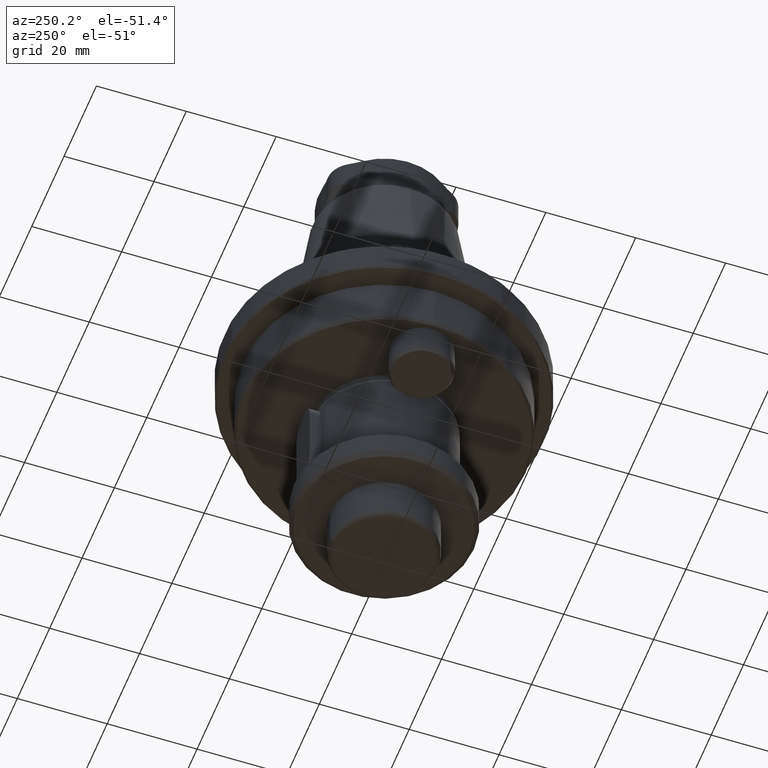
[diagram: clean part render]
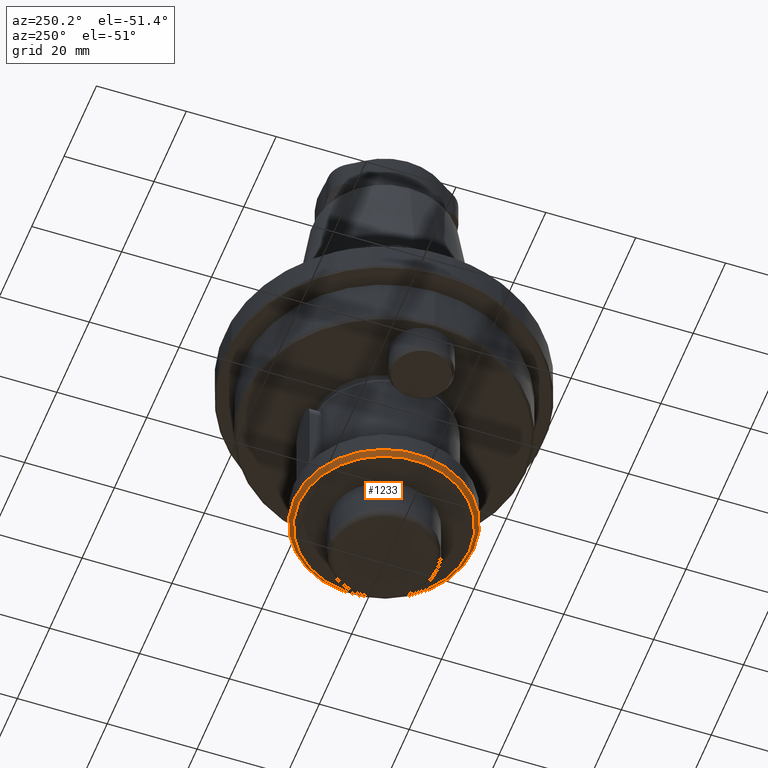
[diagram: same view with one face highlighted and labeled with its STEP entity id]
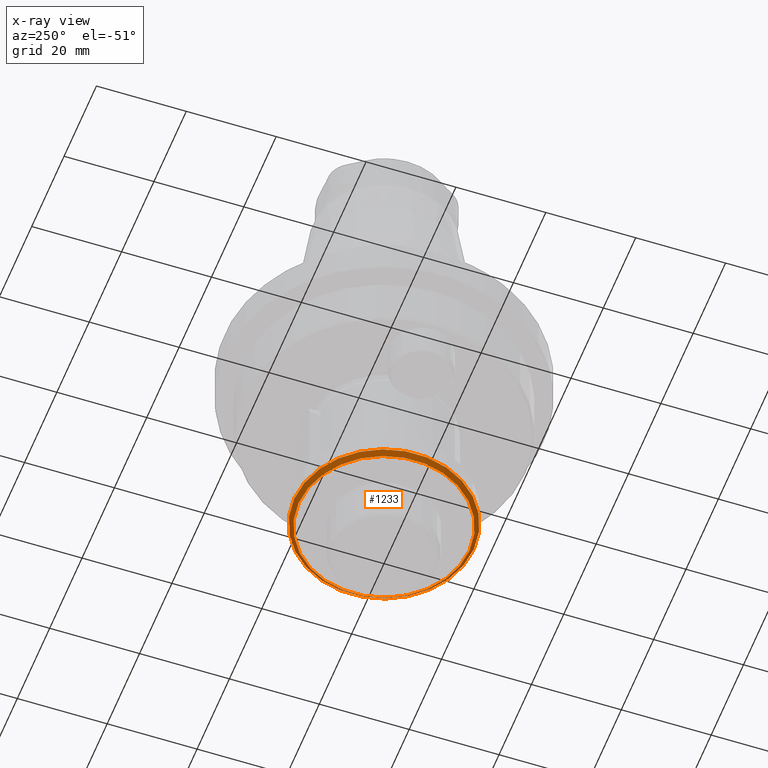
[diagram: x-ray of the same camera — body ghosted, the highlighted face saturated]
A machine part, auxiliary view. The second image highlights one B-rep face of the part: STEP entity #1233.
The next image is the same camera in x-ray: the body ghosted, the highlighted face saturated — about 0% of this face is hidden behind the body in this view.
In plain terms, the highlighted conical surface has half-angle 45 deg.
Its self-contained STEP definition (entity closure, byte-faithful):
#180=CONICAL_SURFACE('',#1364,20.,0.785398163397448);
#252=ORIENTED_EDGE('',*,*,#571,.F.);
#253=ORIENTED_EDGE('',*,*,#568,.T.);
#568=EDGE_CURVE('',#730,#730,#847,.T.);
#571=EDGE_CURVE('',#733,#733,#850,.T.);
#730=VERTEX_POINT('',#1993);
#733=VERTEX_POINT('',#2001);
#847=CIRCLE('',#1360,20.);
#850=CIRCLE('',#1365,19.);
#941=EDGE_LOOP('',(#252));
#942=EDGE_LOOP('',(#253));
#1077=FACE_BOUND('',#941,.T.);
#1078=FACE_BOUND('',#942,.T.);
#1233=ADVANCED_FACE('',(#1077,#1078),#180,.T.);
#1360=AXIS2_PLACEMENT_3D('',#1992,#1580,#1581);
#1364=AXIS2_PLACEMENT_3D('',#1999,#1588,#1589);
#1365=AXIS2_PLACEMENT_3D('',#2000,#1590,#1591);
#1580=DIRECTION('',(-2.39050483828487E-32,2.44921270764479E-16,-1.));
#1581=DIRECTION('',(-8.32667268468867E-17,-1.,-2.44921270764479E-16));
#1588=DIRECTION('',(2.39050483828487E-32,-2.44921270764479E-16,1.));
#1589=DIRECTION('',(8.32667268468867E-17,1.,2.44921270764479E-16));
#1590=DIRECTION('',(-2.39050483828487E-32,2.44921270764479E-16,-1.));
#1591=DIRECTION('',(-8.32667268468867E-17,-1.,-2.44921270764479E-16));
#1992=CARTESIAN_POINT('',(-1.13392691793194E-31,1.50166066647389E-15,-50.));
#1993=CARTESIAN_POINT('',(-1.66533453693774E-15,-20.,-50.));
#1999=CARTESIAN_POINT('',(-1.13392691793194E-31,1.50166066647389E-15,-50.));
#2000=CARTESIAN_POINT('',(-1.37297740176043E-31,1.74658193723837E-15,-51.));
#2001=CARTESIAN_POINT('',(-1.58206781009085E-15,-19.,-51.));